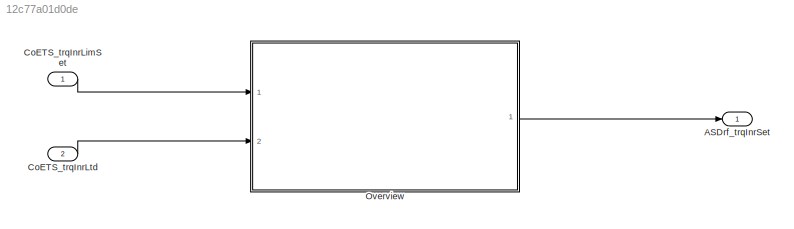
MODEL slx_12c77a01d0de
KIND model
CONFIG AbsTol = auto
CONFIG EnableMultiTasking = off
CONFIG FixedStep = auto
CONFIG MaxStep = auto
CONFIG MinStep = auto
CONFIG RelTol = 1e-3
CONFIG SampleTimeConstraint = Unconstrained
CONFIG Solver = VariableStepAuto
CONFIG SolverName = VariableStepAuto
CONFIG StartTime = 0.0
CONFIG StopTime = 10.0
BLOCK [Outport] ASDrf_trqInrSet
  IconDisplay = Port number
BLOCK [Inport] CoETS_trqInrLimSet
  IconDisplay = Port number
BLOCK [Inport] CoETS_trqInrLtd
  IconDisplay = Port number
  Port = 2
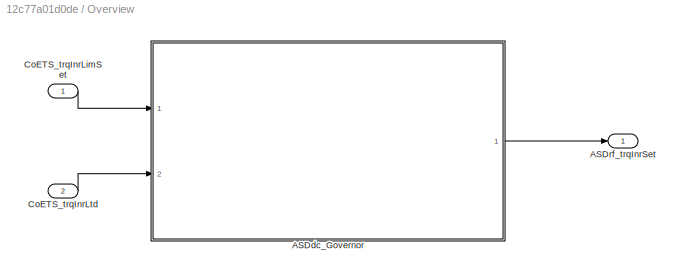
BLOCK [SubSystem] Overview
  Ports = [2, 1]
  RequestExecContextInheritance = off
BLOCK [ModelReference] Overview/ASDdc_Governor
  ModelNameDialog = ASDdc_Governor
  ModelReferenceVersion = 1.52
  Ports = [2, 1]
BLOCK [Outport] Overview/ASDrf_trqInrSet
  IconDisplay = Port number
BLOCK [Inport] Overview/CoETS_trqInrLimSet
  IconDisplay = Port number
BLOCK [Inport] Overview/CoETS_trqInrLtd
  IconDisplay = Port number
  Port = 2
LINE CoETS_trqInrLimSet:1 -> Overview:1
LINE CoETS_trqInrLtd:1 -> Overview:2
LINE Overview/ASDdc_Governor:1 -> Overview/ASDrf_trqInrSet:1
LINE Overview/CoETS_trqInrLimSet:1 -> Overview/ASDdc_Governor:1
LINE Overview/CoETS_trqInrLtd:1 -> Overview/ASDdc_Governor:2
LINE Overview:1 -> ASDrf_trqInrSet:1
